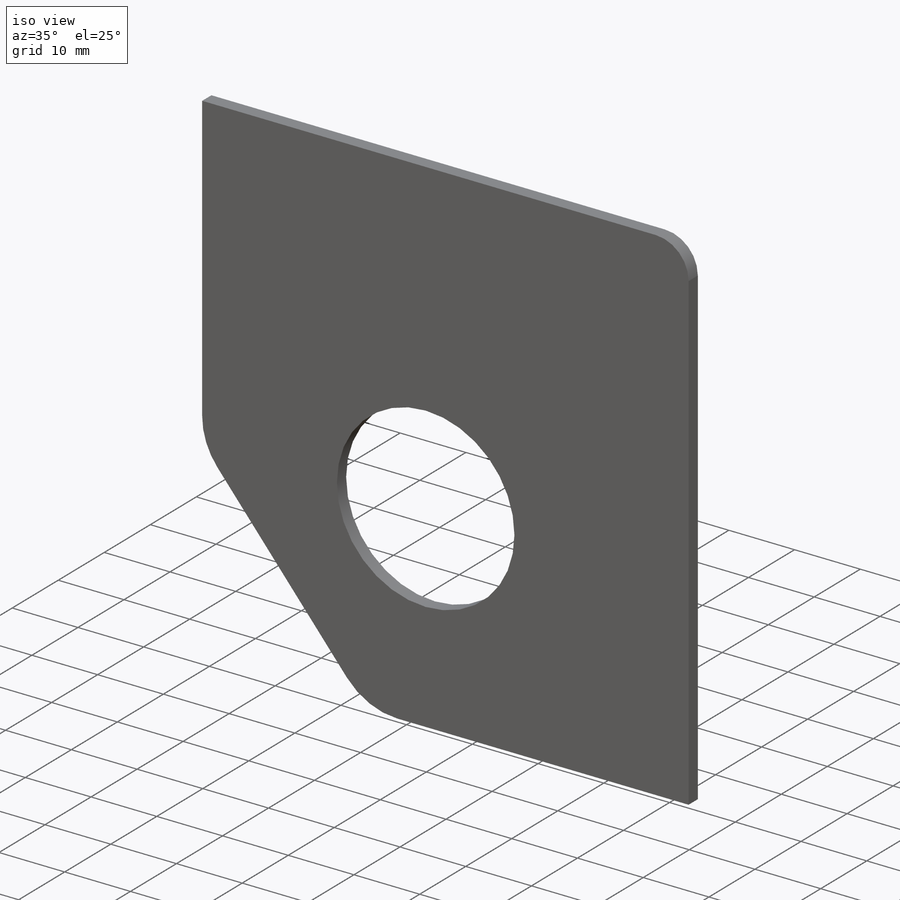
[diagram: iso view]
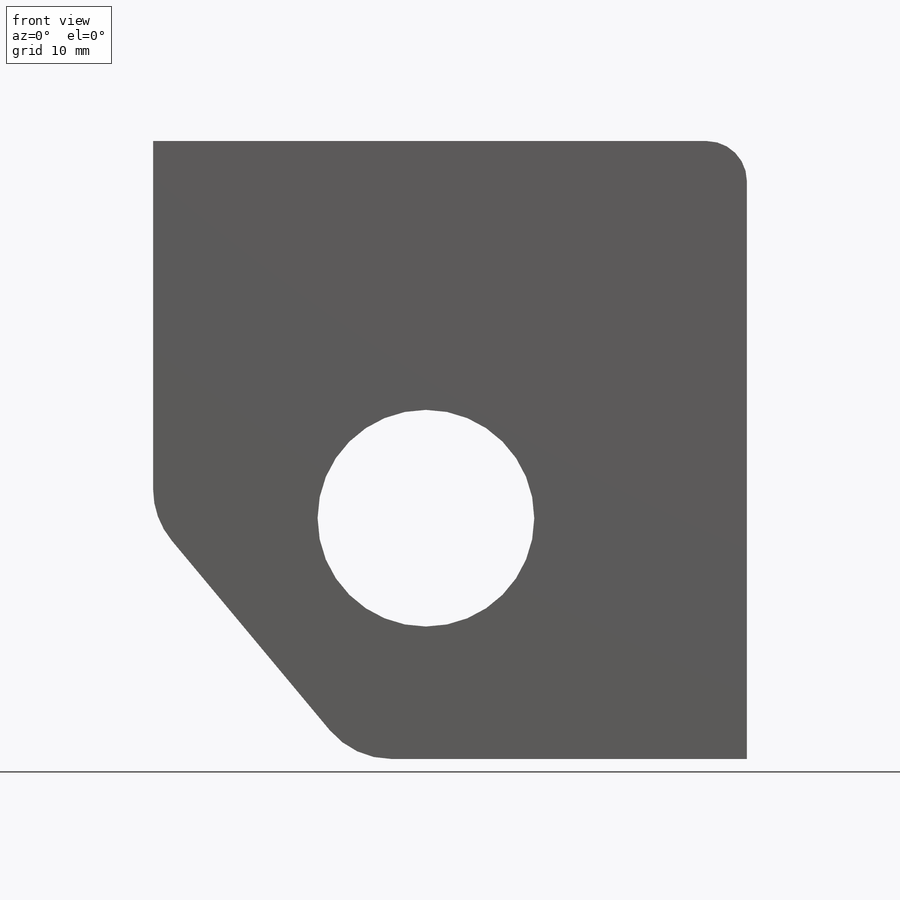
[diagram: front view]
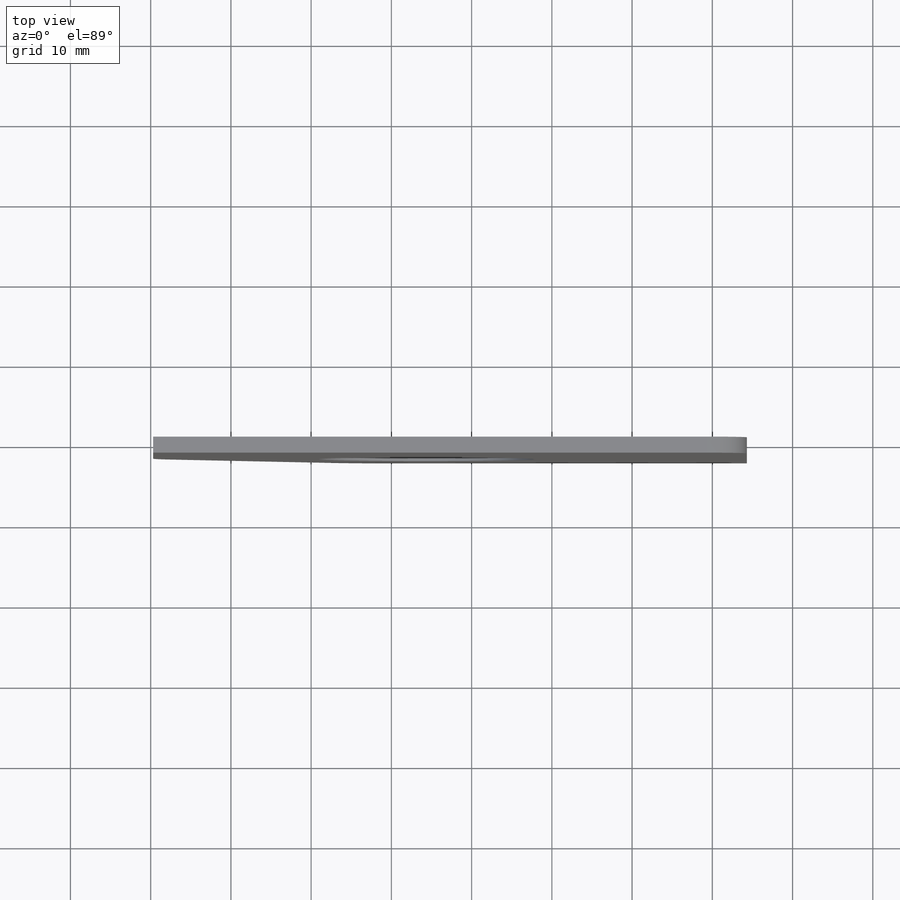
[diagram: top view]
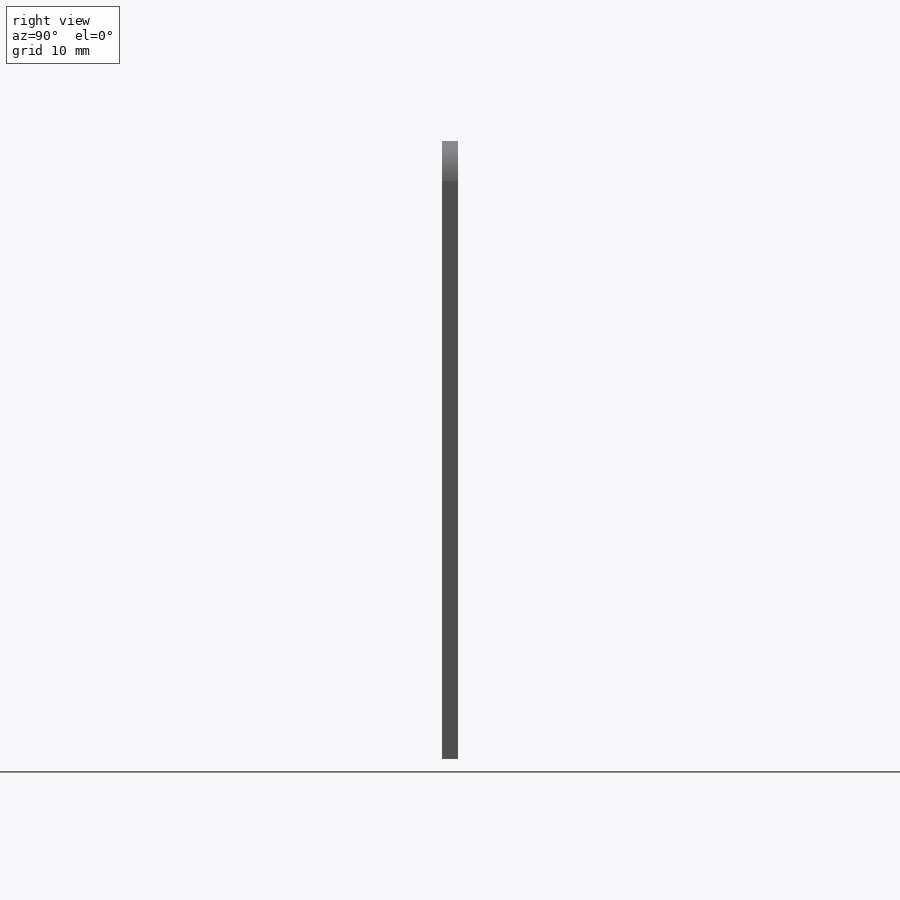
[diagram: right view]
SOLIDWORKS PART (.sldprt)
format: sldprt  version: not decoded by parser v0  size: 150,016 bytes
history: native  units: mm
features: plane x3, sketch x3, fillet x3, cut_extrude x2, material x1, extrude x1 (+10 scaffold rows collapsed)
feature tree (23):
  scaffold x10  (default folders/planes/origin — collapsed)
  material  "Material <não especificado>"
  plane  "Plano frontal"
  plane  "Plano superior"
  plane  "Plano direito"
  sketch  "Esboço1"  dims[D1=74.0mm D2=77.0mm]
  extrude  "Ressalto-extrusão1"  Depth=2mm
  sketch  "Esboço2"  dims[D1=27.0mm D2=34.0mm D3=30.0mm]
  cut_extrude  "Corte-extrusão2"  Depth=2mm
  sketch  "Esboço3"  dims[D1=30.0mm D2=25.0mm]
  cut_extrude  "Corte-extrusão4"  [1 undecoded]
  fillet  "Filete1"  Radius=5mm
  fillet  "Filete3"  Radius=10mm
  fillet  "Filete4"  Radius=10mm
decode coverage: 8 of 9 modeling features carry decoded parameters
note: 1 parameter value undecoded
note: suppression state not decoded; provenance and decode notes live in map.json
